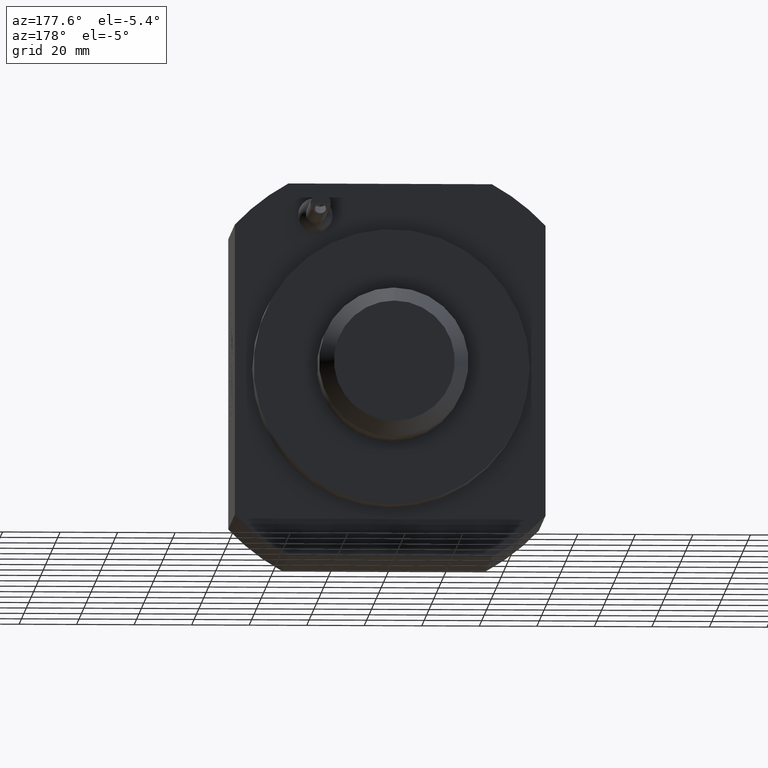
[diagram: clean part render]
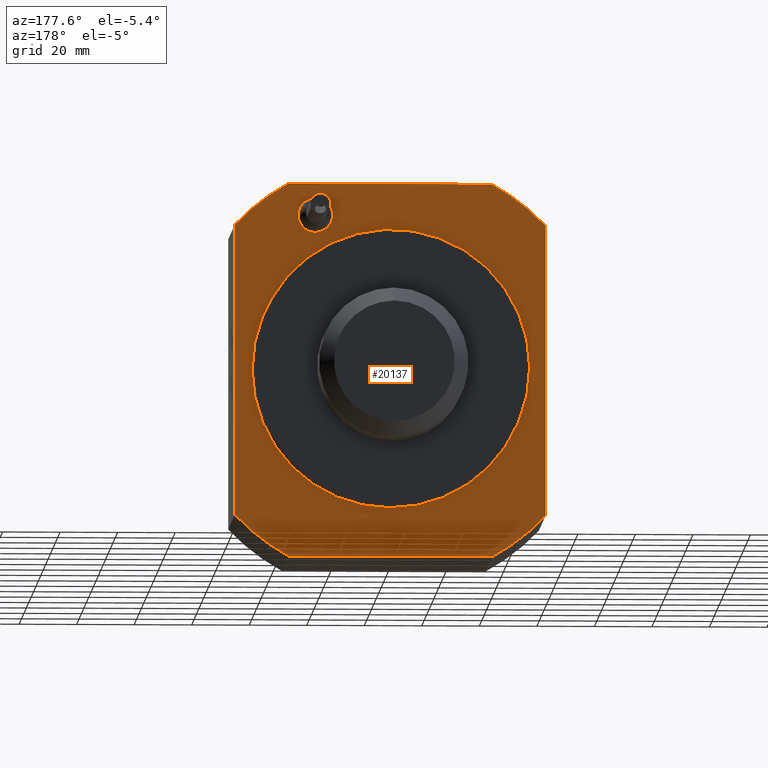
[diagram: same view with one face highlighted and labeled with its STEP entity id]
A machine part, auxiliary view. The second image highlights one B-rep face of the part: STEP entity #20137.
In plain terms, the highlighted planar face has unit normal (-0, -1, 0).
Its self-contained STEP definition (entity closure, byte-faithful):
#63 = ORIENTED_EDGE ( 'NONE', *, *, #6490, .F. ) ;
#253 = CIRCLE ( 'NONE', #14223, 74.00000000000000000 ) ;
#364 = VERTEX_POINT ( 'NONE', #16634 ) ;
#1161 = CARTESIAN_POINT ( 'NONE',  ( 6.735557395310443404E-15, 54.99999999999998579, 0.000000000000000000 ) ) ;
#1269 = DIRECTION ( 'NONE',  ( -1.224646799147353207E-16, -1.000000000000000000, -0.000000000000000000 ) ) ;
#1722 = CARTESIAN_POINT ( 'NONE',  ( -54.00000000000000000, 54.99999999999998579, 54.99999999999998579 ) ) ;
#2646 = DIRECTION ( 'NONE',  ( 1.224646799147353207E-16, 1.000000000000000000, 0.000000000000000000 ) ) ;
#2861 = VERTEX_POINT ( 'NONE', #7238 ) ;
#3708 = CARTESIAN_POINT ( 'NONE',  ( 31.99255751636638578, 54.99999999999998579, 54.00000000000001421 ) ) ;
#3926 = ORIENTED_EDGE ( 'NONE', *, *, #7780, .F. ) ;
#4624 = ORIENTED_EDGE ( 'NONE', *, *, #9687, .F. ) ;
#4626 = DIRECTION ( 'NONE',  ( 1.000000000000000000, 0.000000000000000000, 0.000000000000000000 ) ) ;
#4769 = CARTESIAN_POINT ( 'NONE',  ( 44.00000000000000000, 54.99999999999998579, 64.99999999999997158 ) ) ;
#5244 = DIRECTION ( 'NONE',  ( 0.000000000000000000, 0.000000000000000000, -1.000000000000000000 ) ) ;
#5304 = DIRECTION ( 'NONE',  ( -1.000000000000000000, 1.224646799147353207E-16, 3.154042683594195121E-16 ) ) ;
#5492 = EDGE_CURVE ( 'NONE', #16310, #16310, #7526, .T. ) ;
#5673 = EDGE_CURVE ( 'NONE', #9672, #364, #253, .T. ) ;
#6192 = CARTESIAN_POINT ( 'NONE',  ( 26.00000000000001776, 54.99999999999998579, 54.00000000000001421 ) ) ;
#6243 = DIRECTION ( 'NONE',  ( 0.000000000000000000, 0.000000000000000000, 1.000000000000000000 ) ) ;
#6490 = EDGE_CURVE ( 'NONE', #12345, #18842, #7570, .T. ) ;
#6694 = EDGE_CURVE ( 'NONE', #16354, #12345, #14258, .T. ) ;
#7238 = CARTESIAN_POINT ( 'NONE',  ( 48.00000000000000711, 54.99999999999997868, 1.741062172982489702E-16 ) ) ;
#7290 = CARTESIAN_POINT ( 'NONE',  ( 6.735557395310443404E-15, 54.99999999999998579, 0.000000000000000000 ) ) ;
#7526 = CIRCLE ( 'NONE', #8519, 5.992557516366368908 ) ;
#7570 = CIRCLE ( 'NONE', #17545, 74.00000000000000000 ) ;
#7631 = DIRECTION ( 'NONE',  ( 0.000000000000000000, 0.000000000000000000, 1.000000000000000000 ) ) ;
#7780 = EDGE_CURVE ( 'NONE', #16193, #18453, #9973, .T. ) ;
#8148 = AXIS2_PLACEMENT_3D ( 'NONE', #1161, #1269, #13771 ) ;
#8519 = AXIS2_PLACEMENT_3D ( 'NONE', #6192, #12539, #4626 ) ;
#8625 = FACE_BOUND ( 'NONE', #14544, .T. ) ;
#8711 = VECTOR ( 'NONE', #13064, 1000.000000000000000 ) ;
#8755 = ORIENTED_EDGE ( 'NONE', *, *, #18137, .T. ) ;
#8809 = CIRCLE ( 'NONE', #8148, 74.00000000000000000 ) ;
#9272 = CIRCLE ( 'NONE', #16911, 48.00000000000000000 ) ;
#9672 = VERTEX_POINT ( 'NONE', #11583 ) ;
#9687 = EDGE_CURVE ( 'NONE', #18842, #9672, #16070, .T. ) ;
#9973 = CIRCLE ( 'NONE', #12315, 74.00000000000000000 ) ;
#9979 = EDGE_LOOP ( 'NONE', ( #14389 ) ) ;
#9993 = CARTESIAN_POINT ( 'NONE',  ( 54.00000000000000711, 54.99999999999998579, -50.59644256269404394 ) ) ;
#10434 = DIRECTION ( 'NONE',  ( -1.224646799147353207E-16, -1.000000000000000000, -0.000000000000000000 ) ) ;
#10673 = CARTESIAN_POINT ( 'NONE',  ( -54.00000000000000000, 54.99999999999998579, 50.59644256269403684 ) ) ;
#11473 = LINE ( 'NONE', #17829, #15512 ) ;
#11583 = CARTESIAN_POINT ( 'NONE',  ( -54.00000000000000711, 54.99999999999998579, -50.59644256269402973 ) ) ;
#11730 = EDGE_CURVE ( 'NONE', #12910, #16354, #8809, .T. ) ;
#12043 = CARTESIAN_POINT ( 'NONE',  ( 35.36947836765470754, 54.99999999999998579, -65.00000000000002842 ) ) ;
#12315 = AXIS2_PLACEMENT_3D ( 'NONE', #18592, #10434, #7631 ) ;
#12345 = VERTEX_POINT ( 'NONE', #14409 ) ;
#12439 = DIRECTION ( 'NONE',  ( 1.000000000000000000, -1.445602896647339163E-16, 0.000000000000000000 ) ) ;
#12535 = EDGE_LOOP ( 'NONE', ( #63, #17440, #16821, #8755, #3926, #15982, #13913, #4624 ) ) ;
#12539 = DIRECTION ( 'NONE',  ( -1.224646799147353207E-16, -1.000000000000000000, -0.000000000000000000 ) ) ;
#12556 = EDGE_CURVE ( 'NONE', #16193, #364, #19576, .T. ) ;
#12866 = ORIENTED_EDGE ( 'NONE', *, *, #20445, .F. ) ;
#12910 = VERTEX_POINT ( 'NONE', #14530 ) ;
#12939 = AXIS2_PLACEMENT_3D ( 'NONE', #19994, #16747, #19690 ) ;
#13064 = DIRECTION ( 'NONE',  ( -6.308085367188389994E-17, 7.725176553675518418E-33, -1.000000000000000000 ) ) ;
#13362 = DIRECTION ( 'NONE',  ( 0.000000000000000000, 0.000000000000000000, 1.000000000000000000 ) ) ;
#13556 = PLANE ( 'NONE',  #12939 ) ;
#13771 = DIRECTION ( 'NONE',  ( 0.000000000000000000, 0.000000000000000000, 1.000000000000000000 ) ) ;
#13913 = ORIENTED_EDGE ( 'NONE', *, *, #5673, .F. ) ;
#14007 = CARTESIAN_POINT ( 'NONE',  ( 6.563286050030478551E-15, 54.99999999999998579, 1.741062172982489702E-16 ) ) ;
#14223 = AXIS2_PLACEMENT_3D ( 'NONE', #7290, #18355, #13362 ) ;
#14258 = LINE ( 'NONE', #4769, #16243 ) ;
#14389 = ORIENTED_EDGE ( 'NONE', *, *, #5492, .T. ) ;
#14409 = CARTESIAN_POINT ( 'NONE',  ( -35.36947836765479281, 54.99999999999998579, 64.99999999999997158 ) ) ;
#14530 = CARTESIAN_POINT ( 'NONE',  ( 54.00000000000000711, 54.99999999999998579, 50.59644256269404394 ) ) ;
#14544 = EDGE_LOOP ( 'NONE', ( #12866 ) ) ;
#15512 = VECTOR ( 'NONE', #5244, 1000.000000000000000 ) ;
#15976 = CARTESIAN_POINT ( 'NONE',  ( 35.36947836765479991, 54.99999999999998579, 64.99999999999997158 ) ) ;
#15982 = ORIENTED_EDGE ( 'NONE', *, *, #12556, .T. ) ;
#16070 = LINE ( 'NONE', #1722, #8711 ) ;
#16193 = VERTEX_POINT ( 'NONE', #12043 ) ;
#16243 = VECTOR ( 'NONE', #17563, 1000.000000000000000 ) ;
#16310 = VERTEX_POINT ( 'NONE', #3708 ) ;
#16354 = VERTEX_POINT ( 'NONE', #15976 ) ;
#16634 = CARTESIAN_POINT ( 'NONE',  ( -35.36947836765473596, 54.99999999999998579, -65.00000000000000000 ) ) ;
#16644 = FACE_BOUND ( 'NONE', #9979, .T. ) ;
#16733 = CARTESIAN_POINT ( 'NONE',  ( 44.00000000000000000, 54.99999999999998579, -65.00000000000002842 ) ) ;
#16747 = DIRECTION ( 'NONE',  ( -1.224646799147353207E-16, -1.000000000000000000, 0.000000000000000000 ) ) ;
#16790 = VECTOR ( 'NONE', #5304, 1000.000000000000000 ) ;
#16821 = ORIENTED_EDGE ( 'NONE', *, *, #11730, .F. ) ;
#16911 = AXIS2_PLACEMENT_3D ( 'NONE', #14007, #2646, #12439 ) ;
#17262 = CARTESIAN_POINT ( 'NONE',  ( 6.735557395310443404E-15, 54.99999999999998579, 0.000000000000000000 ) ) ;
#17440 = ORIENTED_EDGE ( 'NONE', *, *, #6694, .F. ) ;
#17545 = AXIS2_PLACEMENT_3D ( 'NONE', #17262, #20206, #6243 ) ;
#17563 = DIRECTION ( 'NONE',  ( -1.000000000000000000, 1.224646799147353207E-16, 0.000000000000000000 ) ) ;
#17829 = CARTESIAN_POINT ( 'NONE',  ( 54.00000000000000711, 54.99999999999998579, 54.99999999999998579 ) ) ;
#18114 = FACE_OUTER_BOUND ( 'NONE', #12535, .T. ) ;
#18137 = EDGE_CURVE ( 'NONE', #12910, #18453, #11473, .T. ) ;
#18355 = DIRECTION ( 'NONE',  ( -1.224646799147353207E-16, -1.000000000000000000, -0.000000000000000000 ) ) ;
#18453 = VERTEX_POINT ( 'NONE', #9993 ) ;
#18592 = CARTESIAN_POINT ( 'NONE',  ( 6.735557395310443404E-15, 54.99999999999998579, 0.000000000000000000 ) ) ;
#18842 = VERTEX_POINT ( 'NONE', #10673 ) ;
#19576 = LINE ( 'NONE', #16733, #16790 ) ;
#19690 = DIRECTION ( 'NONE',  ( 0.000000000000000000, 0.000000000000000000, 1.000000000000000000 ) ) ;
#19994 = CARTESIAN_POINT ( 'NONE',  ( 6.735557395310443404E-15, 54.99999999999998579, 0.000000000000000000 ) ) ;
#20137 = ADVANCED_FACE ( 'Defeature completata1_3', ( #16644, #8625, #18114 ), #13556, .F. ) ;
#20206 = DIRECTION ( 'NONE',  ( -1.224646799147353207E-16, -1.000000000000000000, -0.000000000000000000 ) ) ;
#20445 = EDGE_CURVE ( 'NONE', #2861, #2861, #9272, .T. ) ;